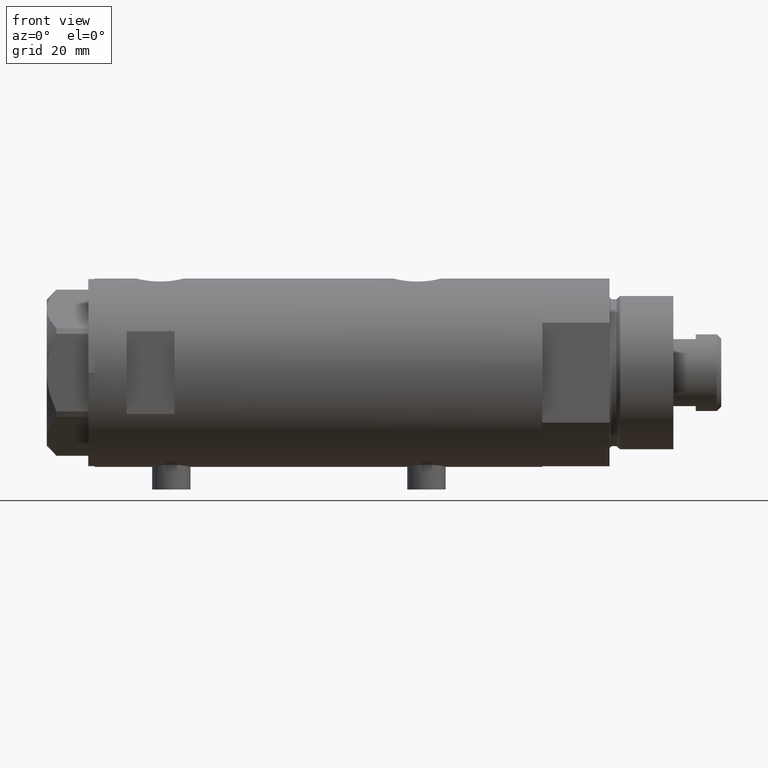
[diagram: clean part render]
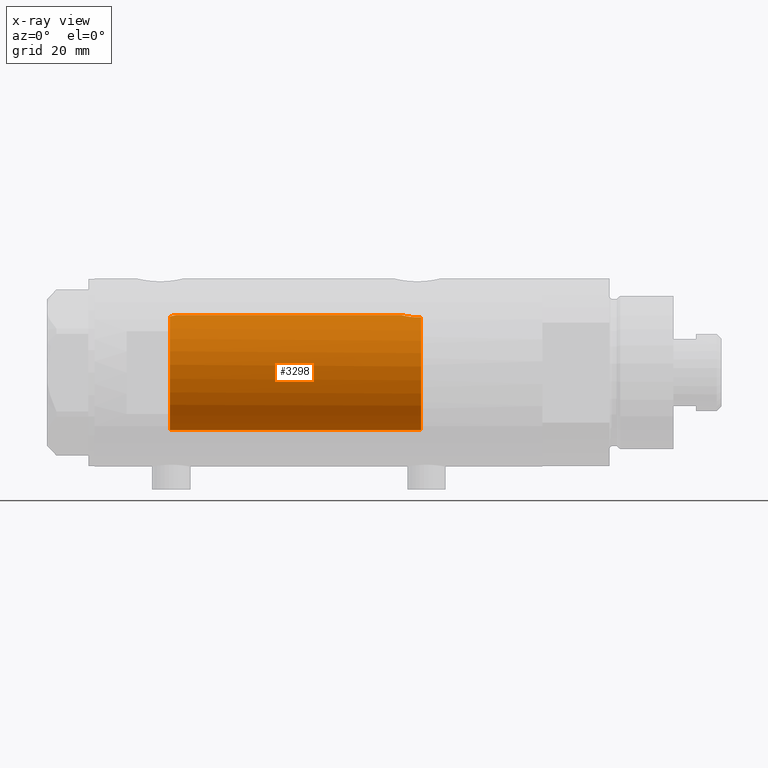
[diagram: x-ray — body ghosted, one internal face saturated and labeled with its STEP entity id]
A machine part, front view, then the same camera in x-ray: the body is ghosted and one INTERNAL B-rep face — a face not visible from any outside direction — is saturated and labeled: STEP entity #3298.
In plain terms, the highlighted cylindrical surface (partial cylindrical patch) has radius 18 mm, axis along (1, 0, -0).
Its self-contained STEP definition (entity closure, byte-faithful):
#24 = CARTESIAN_POINT ( 'NONE',  ( 0.000000000000000000, 0.000000000000000000, 70.09999999999999432 ) ) ;
#32 = B_SPLINE_CURVE_WITH_KNOTS ( 'NONE', 3,
 ( #1075, #2470, #3129, #2411, #3154, #2787, #391, #689, #2501, #4193, #1032, #3796, #2761, #1799, #712, #4467, #366, #3856, #2074, #2454, #786, #1392 ),
 .UNSPECIFIED., .F., .F.,
 ( 4, 2, 2, 2, 2, 2, 2, 2, 2, 2, 4 ),
 ( 0.006434066725458731720, 0.007540005695425726351, 0.008645944665392712308, 0.009751883635359694796, 0.01085782260532668075, 0.01196376157529366671, 0.01251673106027715796, 0.01306970054526064920, 0.01417563951522762648, 0.01472860900021111773, 0.01528157848519460724 ),
 .UNSPECIFIED. ) ;
#321 = AXIS2_PLACEMENT_3D ( 'NONE', #1896, #3342, #4048 ) ;
#326 = AXIS2_PLACEMENT_3D ( 'NONE', #24, #2096, #1339 ) ;
#345 = VERTEX_POINT ( 'NONE', #1854 ) ;
#366 = CARTESIAN_POINT ( 'NONE',  ( 17.94411621822183633, -1.462318180775793008, -26.24532018047458592 ) ) ;
#391 = CARTESIAN_POINT ( 'NONE',  ( 17.41145422212636618, -4.568075757751901556, -29.18573299053985792 ) ) ;
#408 = VERTEX_POINT ( 'NONE', #1320 ) ;
#519 = EDGE_CURVE ( 'NONE', #1196, #3260, #1739, .T. ) ;
#548 = CARTESIAN_POINT ( 'NONE',  ( 17.58783030962034744, -3.829911878881814058, 46.59999999999999432 ) ) ;
#627 = EDGE_LOOP ( 'NONE', ( #4368, #2297, #3521, #1937, #3312, #1281 ) ) ;
#639 = CARTESIAN_POINT ( 'NONE',  ( 18.00000000000000000, 0.000000000000000000, 44.73499999999999233 ) ) ;
#689 = CARTESIAN_POINT ( 'NONE',  ( 17.49057517990651434, -4.255095079290339477, -28.51249222525177984 ) ) ;
#706 = VERTEX_POINT ( 'NONE', #3598 ) ;
#712 = CARTESIAN_POINT ( 'NONE',  ( 17.85233710017094566, -2.306965814323742148, -26.61276266371617893 ) ) ;
#786 = CARTESIAN_POINT ( 'NONE',  ( 18.00000000000000000, -0.1843597763241284493, -26.03499999999998948 ) ) ;
#922 = CARTESIAN_POINT ( 'NONE',  ( 18.00000000000000000, 0.000000000000000000, 44.73499999999999233 ) ) ;
#944 = CARTESIAN_POINT ( 'NONE',  ( 17.91197612045793264, -1.808534151376003374, 45.06883769349536095 ) ) ;
#1024 = EDGE_CURVE ( 'NONE', #408, #706, #1105, .T. ) ;
#1032 = CARTESIAN_POINT ( 'NONE',  ( 17.68752450041759161, -3.351772203450734899, -27.35493447381010768 ) ) ;
#1075 = CARTESIAN_POINT ( 'NONE',  ( 17.37157951943346035, -4.714681855650494136, -32.09999999999999432 ) ) ;
#1105 = CIRCLE ( 'NONE', #2833, 18.00000000000000000 ) ;
#1196 = VERTEX_POINT ( 'NONE', #922 ) ;
#1214 = LINE ( 'NONE', #2490, #4128 ) ;
#1264 = CARTESIAN_POINT ( 'NONE',  ( 17.68806959355790909, -3.349106256179507746, 46.05213344176306833 ) ) ;
#1281 = ORIENTED_EDGE ( 'NONE', *, *, #1024, .T. ) ;
#1290 = CARTESIAN_POINT ( 'NONE',  ( 17.63693340989344449, -3.604419224588191639, 46.31212766824009464 ) ) ;
#1320 = CARTESIAN_POINT ( 'NONE',  ( -18.00000000000000000, 0.000000000000000000, 46.59999999999999432 ) ) ;
#1339 = DIRECTION ( 'NONE',  ( -1.000000000000000000, 0.000000000000000000, 0.000000000000000000 ) ) ;
#1392 = CARTESIAN_POINT ( 'NONE',  ( 18.00000000000000000, 5.958021437579254357E-16, -26.03499999999998948 ) ) ;
#1505 = EDGE_CURVE ( 'NONE', #408, #2721, #1214, .T. ) ;
#1719 = CARTESIAN_POINT ( 'NONE',  ( 0.000000000000000000, 0.000000000000000000, 46.59999999999999432 ) ) ;
#1739 = LINE ( 'NONE', #3156, #3692 ) ;
#1799 = CARTESIAN_POINT ( 'NONE',  ( 17.83055549281851881, -2.468946622824476300, -26.70402443991356378 ) ) ;
#1834 = DIRECTION ( 'NONE',  ( -0.000000000000000000, -0.000000000000000000, -1.000000000000000000 ) ) ;
#1854 = CARTESIAN_POINT ( 'NONE',  ( 17.37157951943346035, -4.714681855650494136, -32.09999999999999432 ) ) ;
#1896 = CARTESIAN_POINT ( 'NONE',  ( 0.000000000000000000, 0.000000000000000000, -32.09999999999998721 ) ) ;
#1937 = ORIENTED_EDGE ( 'NONE', *, *, #3106, .T. ) ;
#1977 = CARTESIAN_POINT ( 'NONE',  ( 18.00000000000000355, -0.3730735969061054202, 44.73499999999999233 ) ) ;
#2018 = EDGE_CURVE ( 'NONE', #345, #3260, #32, .T. ) ;
#2053 = CYLINDRICAL_SURFACE ( 'NONE', #326, 18.00000000000000000 ) ;
#2074 = CARTESIAN_POINT ( 'NONE',  ( 17.98578085412772865, -0.7388632979187818028, -26.08783263922209983 ) ) ;
#2096 = DIRECTION ( 'NONE',  ( -0.000000000000000000, -0.000000000000000000, -1.000000000000000000 ) ) ;
#2246 = EDGE_CURVE ( 'NONE', #1196, #706, #3654, .T. ) ;
#2297 = ORIENTED_EDGE ( 'NONE', *, *, #519, .T. ) ;
#2323 = CARTESIAN_POINT ( 'NONE',  ( 17.78689333688353003, -2.776822659814079941, 45.58837617090290451 ) ) ;
#2411 = CARTESIAN_POINT ( 'NONE',  ( 17.32819690210316210, -4.871720223791780491, -30.63420793424217692 ) ) ;
#2454 = CARTESIAN_POINT ( 'NONE',  ( 17.99716838826709520, -0.3690012331666936984, -26.04544422515623125 ) ) ;
#2470 = CARTESIAN_POINT ( 'NONE',  ( 17.34665145232711581, -4.806531086046565093, -31.73913341666349197 ) ) ;
#2490 = CARTESIAN_POINT ( 'NONE',  ( -18.00000000000000000, 0.000000000000000000, 70.09999999999999432 ) ) ;
#2501 = CARTESIAN_POINT ( 'NONE',  ( 17.53680980608542939, -4.063678955652870073, -28.20014584461345919 ) ) ;
#2621 = CARTESIAN_POINT ( 'NONE',  ( -18.00000000000000000, 0.000000000000000000, -32.09999999999998721 ) ) ;
#2721 = VERTEX_POINT ( 'NONE', #2621 ) ;
#2761 = CARTESIAN_POINT ( 'NONE',  ( 17.78501549309440932, -2.778062367771705343, -26.90196575702888282 ) ) ;
#2787 = CARTESIAN_POINT ( 'NONE',  ( 17.37991340314490785, -4.684530256828848493, -29.53638461192320364 ) ) ;
#2833 = AXIS2_PLACEMENT_3D ( 'NONE', #1719, #3749, #4449 ) ;
#3040 = CARTESIAN_POINT ( 'NONE',  ( 17.83332390923721178, -2.466220319593706911, 45.39048875048363385 ) ) ;
#3106 = EDGE_CURVE ( 'NONE', #345, #2721, #3915, .T. ) ;
#3129 = CARTESIAN_POINT ( 'NONE',  ( 17.33258131920084466, -4.856098292894135859, -31.37181853595666325 ) ) ;
#3154 = CARTESIAN_POINT ( 'NONE',  ( 17.33821808943282861, -4.836569767017237176, -30.25823404381377557 ) ) ;
#3156 = CARTESIAN_POINT ( 'NONE',  ( 18.00000000000000000, 2.204364238465235033E-15, 70.09999999999999432 ) ) ;
#3260 = VERTEX_POINT ( 'NONE', #4007 ) ;
#3298 = ADVANCED_FACE ( 'NONE', ( #3784 ), #2053, .F. ) ;
#3310 = CARTESIAN_POINT ( 'NONE',  ( 17.94467453319815320, -1.455166008437401626, 44.94318072553844701 ) ) ;
#3312 = ORIENTED_EDGE ( 'NONE', *, *, #1505, .F. ) ;
#3342 = DIRECTION ( 'NONE',  ( 0.000000000000000000, 0.000000000000000000, -1.000000000000000000 ) ) ;
#3356 = CARTESIAN_POINT ( 'NONE',  ( 17.98842269988416120, -0.7385803848020523477, 44.77734794098787319 ) ) ;
#3521 = ORIENTED_EDGE ( 'NONE', *, *, #2018, .F. ) ;
#3598 = CARTESIAN_POINT ( 'NONE',  ( 17.58783030962034744, -3.829911878881814058, 46.59999999999999432 ) ) ;
#3654 = B_SPLINE_CURVE_WITH_KNOTS ( 'NONE', 3,
 ( #639, #1977, #3356, #3310, #944, #3040, #2323, #1264, #1290, #548 ),
 .UNSPECIFIED., .F., .F.,
 ( 4, 2, 2, 2, 4 ),
 ( 2.959341624767055034E-19, 0.001102956581910075669, 0.002205913163820150905, 0.003308869745730224840, 0.004411826327640299208 ),
 .UNSPECIFIED. ) ;
#3692 = VECTOR ( 'NONE', #4112, 1000.000000000000000 ) ;
#3749 = DIRECTION ( 'NONE',  ( 0.000000000000000000, 0.000000000000000000, 1.000000000000000000 ) ) ;
#3784 = FACE_OUTER_BOUND ( 'NONE', #627, .T. ) ;
#3796 = CARTESIAN_POINT ( 'NONE',  ( 17.76113839466168542, -2.926207082530025261, -27.00911996042637142 ) ) ;
#3856 = CARTESIAN_POINT ( 'NONE',  ( 17.97721305204033726, -0.9231636963562669385, -26.11982822371819424 ) ) ;
#3915 = CIRCLE ( 'NONE', #321, 18.00000000000000000 ) ;
#4007 = CARTESIAN_POINT ( 'NONE',  ( 18.00000000000000000, 5.958021437579254357E-16, -26.03499999999998948 ) ) ;
#4048 = DIRECTION ( 'NONE',  ( -1.000000000000000000, 0.000000000000000000, 0.000000000000000000 ) ) ;
#4112 = DIRECTION ( 'NONE',  ( -0.000000000000000000, -0.000000000000000000, -1.000000000000000000 ) ) ;
#4128 = VECTOR ( 'NONE', #1834, 1000.000000000000000 ) ;
#4193 = CARTESIAN_POINT ( 'NONE',  ( 17.63516507807923261, -3.613050995810185739, -27.62150009659157490 ) ) ;
#4368 = ORIENTED_EDGE ( 'NONE', *, *, #2246, .F. ) ;
#4449 = DIRECTION ( 'NONE',  ( 1.000000000000000000, 0.000000000000000000, 0.000000000000000000 ) ) ;
#4467 = CARTESIAN_POINT ( 'NONE',  ( 17.91207243579358277, -1.808254927071299534, -26.36838658940774494 ) ) ;